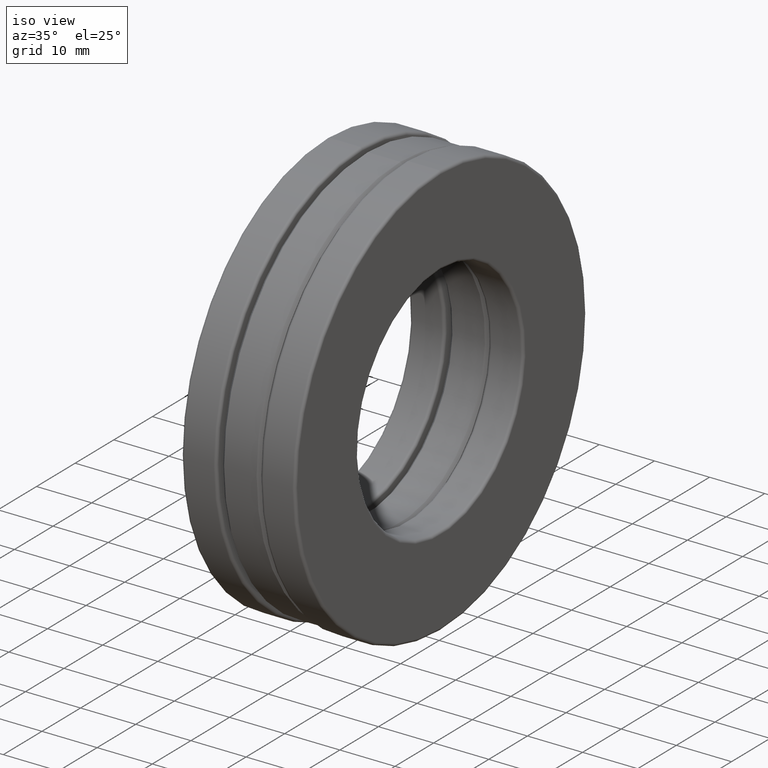
[diagram: clean part render]
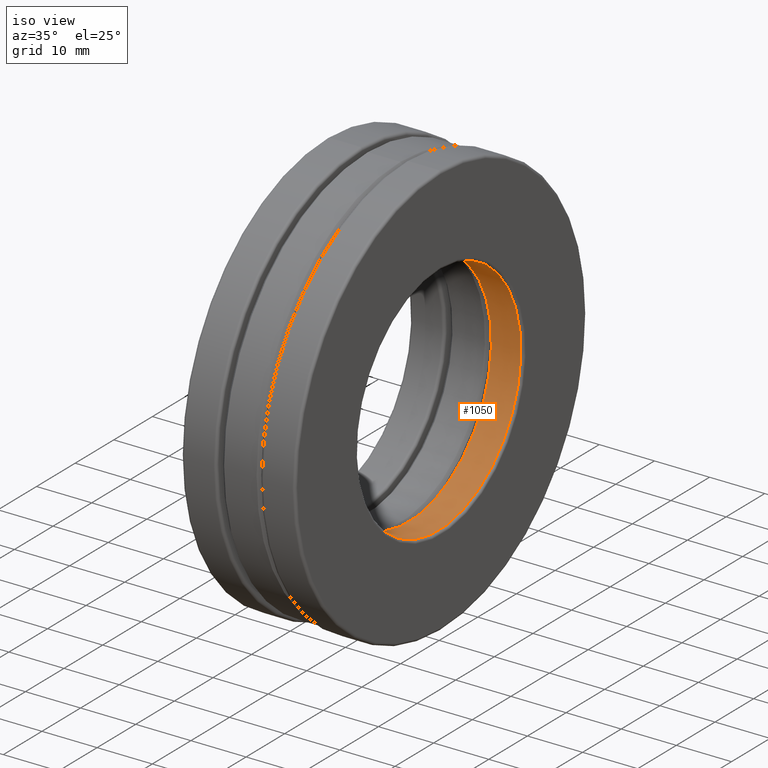
[diagram: same view with one face highlighted and labeled with its STEP entity id]
A machine part, iso view. The second image highlights one B-rep face of the part: STEP entity #1050.
In plain terms, the highlighted cylindrical surface (bore or boss wall) has radius 21.4312 mm, axis along (-1, -0, -0).
Its self-contained STEP definition (entity closure, byte-faithful):
#8 = EDGE_CURVE ( 'NONE', #1342, #1342, #1007, .T. ) ;
#9 = AXIS2_PLACEMENT_3D ( 'NONE', #766, #425, #79 ) ;
#25 = ORIENTED_EDGE ( 'NONE', *, *, #205, .T. ) ;
#77 = FACE_OUTER_BOUND ( 'NONE', #1082, .T. ) ;
#79 = DIRECTION ( 'NONE',  ( 0.0000000000000000000, 0.0000000000000000000, 1.000000000000000000 ) ) ;
#107 = CYLINDRICAL_SURFACE ( 'NONE', #9, 0.8437500000000000000 ) ;
#157 = AXIS2_PLACEMENT_3D ( 'NONE', #950, #1145, #1043 ) ;
#170 = CARTESIAN_POINT ( 'NONE',  ( 0.1759999999999999900, 0.0000000000000000000, 0.0000000000000000000 ) ) ;
#176 = CIRCLE ( 'NONE', #1468, 0.8437500000000000000 ) ;
#205 = EDGE_CURVE ( 'NONE', #1187, #1187, #176, .T. ) ;
#425 = DIRECTION ( 'NONE',  ( -1.000000000000000000, -0.0000000000000000000, -0.0000000000000000000 ) ) ;
#491 = CARTESIAN_POINT ( 'NONE',  ( 0.3860000000000000700, 0.0000000000000000000, 0.8437500000000000000 ) ) ;
#655 = DIRECTION ( 'NONE',  ( 0.0000000000000000000, 0.0000000000000000000, 1.000000000000000000 ) ) ;
#657 = FACE_OUTER_BOUND ( 'NONE', #1081, .T. ) ;
#766 = CARTESIAN_POINT ( 'NONE',  ( 0.0000000000000000000, 0.0000000000000000000, 0.0000000000000000000 ) ) ;
#950 = CARTESIAN_POINT ( 'NONE',  ( 0.3860000000000000700, 0.0000000000000000000, 0.0000000000000000000 ) ) ;
#1007 = CIRCLE ( 'NONE', #157, 0.8437500000000000000 ) ;
#1043 = DIRECTION ( 'NONE',  ( 0.0000000000000000000, 0.0000000000000000000, 1.000000000000000000 ) ) ;
#1050 = ADVANCED_FACE ( 'NONE', ( #657, #77 ), #107, .F. ) ;
#1081 = EDGE_LOOP ( 'NONE', ( #25 ) ) ;
#1082 = EDGE_LOOP ( 'NONE', ( #1115 ) ) ;
#1089 = DIRECTION ( 'NONE',  ( -1.000000000000000000, -0.0000000000000000000, -0.0000000000000000000 ) ) ;
#1115 = ORIENTED_EDGE ( 'NONE', *, *, #8, .F. ) ;
#1145 = DIRECTION ( 'NONE',  ( -1.000000000000000000, -0.0000000000000000000, -0.0000000000000000000 ) ) ;
#1187 = VERTEX_POINT ( 'NONE', #1469 ) ;
#1342 = VERTEX_POINT ( 'NONE', #491 ) ;
#1468 = AXIS2_PLACEMENT_3D ( 'NONE', #170, #1089, #655 ) ;
#1469 = CARTESIAN_POINT ( 'NONE',  ( 0.1759999999999999900, 0.0000000000000000000, 0.8437500000000000000 ) ) ;